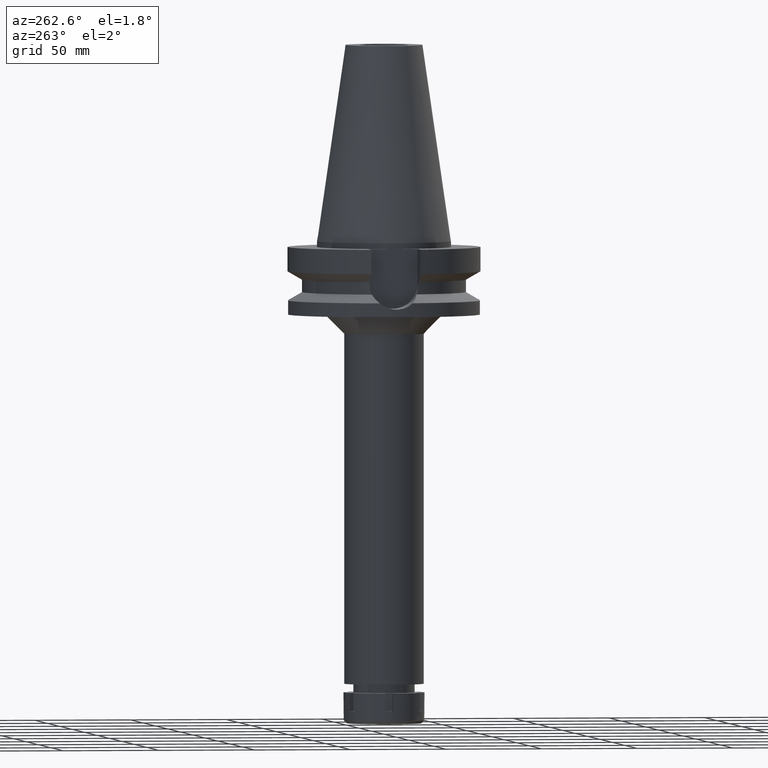
[diagram: clean part render]
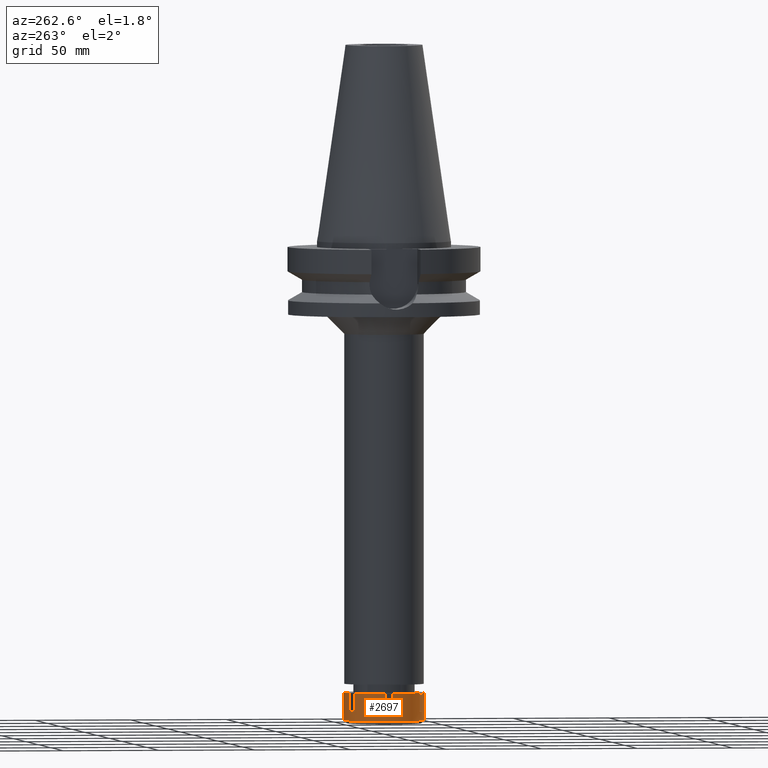
[diagram: same view with one face highlighted and labeled with its STEP entity id]
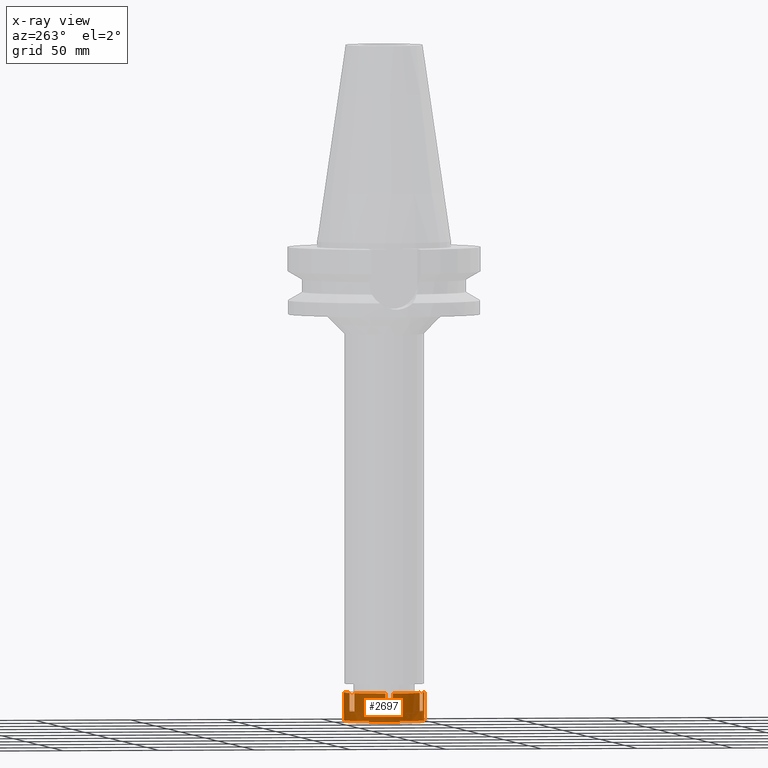
[diagram: x-ray of the same camera — body ghosted, the highlighted face saturated]
A machine part, auxiliary view. The second image highlights one B-rep face of the part: STEP entity #2697.
The next image is the same camera in x-ray: the body ghosted, the highlighted face saturated — about 0% of this face is hidden behind the body in this view.
In plain terms, the highlighted cylindrical surface (partial cylindrical patch) has radius 21 mm, axis along (0, 0, -1).
Its self-contained STEP definition (entity closure, byte-faithful):
#30 = DIRECTION ( 'NONE',  ( 0.0000000000000000000, 0.0000000000000000000, -1.000000000000000000 ) ) ;
#54 = DIRECTION ( 'NONE',  ( 0.0000000000000000000, 0.0000000000000000000, -1.000000000000000000 ) ) ;
#126 = DIRECTION ( 'NONE',  ( -0.4152486510768949035, -0.9097079519157886818, 0.0000000000000000000 ) ) ;
#129 = ORIENTED_EDGE ( 'NONE', *, *, #871, .T. ) ;
#140 = CARTESIAN_POINT ( 'NONE',  ( -20.90454496036999998, -2.000000000000000000, -9.500000000000000000 ) ) ;
#144 = DIRECTION ( 'NONE',  ( 0.0000000000000000000, 0.0000000000000000000, -1.000000000000000000 ) ) ;
#153 = FACE_OUTER_BOUND ( 'NONE', #1088, .T. ) ;
#171 = VERTEX_POINT ( 'NONE', #1760 ) ;
#235 = CARTESIAN_POINT ( 'NONE',  ( -8.720221672615000585, 19.10386699022999935, -9.500000000000000000 ) ) ;
#265 = ORIENTED_EDGE ( 'NONE', *, *, #1177, .F. ) ;
#274 = EDGE_CURVE ( 'NONE', #1949, #2956, #315, .T. ) ;
#281 = CIRCLE ( 'NONE', #3175, 20.99999999999999645 ) ;
#301 = CARTESIAN_POINT ( 'NONE',  ( 0.0000000000000000000, 0.0000000000000000000, -14.50000000000000000 ) ) ;
#315 = LINE ( 'NONE', #2047, #2255 ) ;
#316 = EDGE_CURVE ( 'NONE', #171, #548, #804, .T. ) ;
#345 = DIRECTION ( 'NONE',  ( 0.0000000000000000000, 0.0000000000000000000, 1.000000000000000000 ) ) ;
#370 = DIRECTION ( 'NONE',  ( 0.0000000000000000000, 0.0000000000000000000, -1.000000000000000000 ) ) ;
#447 = ORIENTED_EDGE ( 'NONE', *, *, #1408, .T. ) ;
#454 = CARTESIAN_POINT ( 'NONE',  ( -8.720221672615000585, -19.10386699022999935, -9.500000000000000000 ) ) ;
#496 = EDGE_CURVE ( 'NONE', #811, #1340, #1319, .T. ) ;
#507 = VERTEX_POINT ( 'NONE', #1262 ) ;
#509 = CIRCLE ( 'NONE', #2712, 21.00000000000000711 ) ;
#548 = VERTEX_POINT ( 'NONE', #1485 ) ;
#562 = CARTESIAN_POINT ( 'NONE',  ( -12.18432328774999895, -17.10386699022999935, 0.0000000000000000000 ) ) ;
#596 = DIRECTION ( 'NONE',  ( -0.5802058708454290725, -0.8144698566776411575, 0.0000000000000000000 ) ) ;
#627 = CARTESIAN_POINT ( 'NONE',  ( -12.18432328774999895, 17.10386699022999935, -9.500000000000000000 ) ) ;
#657 = DIRECTION ( 'NONE',  ( -0.9954545219222313834, 0.09523809523810303213, 0.0000000000000000000 ) ) ;
#738 = ORIENTED_EDGE ( 'NONE', *, *, #2731, .F. ) ;
#804 = CIRCLE ( 'NONE', #1743, 21.00000000000000711 ) ;
#811 = VERTEX_POINT ( 'NONE', #140 ) ;
#817 = DIRECTION ( 'NONE',  ( 0.0000000000000000000, 0.0000000000000000000, -1.000000000000000000 ) ) ;
#839 = EDGE_CURVE ( 'NONE', #2295, #2210, #2596, .T. ) ;
#871 = EDGE_CURVE ( 'NONE', #3151, #2523, #2810, .T. ) ;
#877 = VECTOR ( 'NONE', #3126, 1000.000000000000000 ) ;
#905 = CIRCLE ( 'NONE', #1377, 21.00000000000000000 ) ;
#930 = CARTESIAN_POINT ( 'NONE',  ( 0.0000000000000000000, 0.0000000000000000000, 0.0000000000000000000 ) ) ;
#942 = EDGE_CURVE ( 'NONE', #1949, #507, #905, .T. ) ;
#1014 = DIRECTION ( 'NONE',  ( 0.0000000000000000000, 0.0000000000000000000, 1.000000000000000000 ) ) ;
#1032 = EDGE_CURVE ( 'NONE', #811, #3586, #3090, .T. ) ;
#1049 = CARTESIAN_POINT ( 'NONE',  ( 0.0000000000000000000, 0.0000000000000000000, 0.0000000000000000000 ) ) ;
#1088 = EDGE_LOOP ( 'NONE', ( #2754, #3512, #1118, #447, #2624, #1384, #738, #1616, #265, #1654, #1395, #2320, #1833, #129, #2458, #1216 ) ) ;
#1118 = ORIENTED_EDGE ( 'NONE', *, *, #3022, .T. ) ;
#1133 = CARTESIAN_POINT ( 'NONE',  ( -20.90454496036999998, 2.000000000000000000, -9.500000000000000000 ) ) ;
#1152 = LINE ( 'NONE', #2829, #3107 ) ;
#1177 = EDGE_CURVE ( 'NONE', #1774, #548, #1301, .T. ) ;
#1216 = ORIENTED_EDGE ( 'NONE', *, *, #3372, .T. ) ;
#1262 = CARTESIAN_POINT ( 'NONE',  ( -8.720221672615998898, -19.10386699022999935, 0.0000000000000000000 ) ) ;
#1276 = EDGE_CURVE ( 'NONE', #2295, #3304, #509, .T. ) ;
#1301 = LINE ( 'NONE', #2680, #877 ) ;
#1319 = CIRCLE ( 'NONE', #3223, 20.99999999999999289 ) ;
#1340 = VERTEX_POINT ( 'NONE', #1133 ) ;
#1377 = AXIS2_PLACEMENT_3D ( 'NONE', #2922, #2888, #1540 ) ;
#1384 = ORIENTED_EDGE ( 'NONE', *, *, #942, .T. ) ;
#1395 = ORIENTED_EDGE ( 'NONE', *, *, #1032, .F. ) ;
#1408 = EDGE_CURVE ( 'NONE', #2859, #2956, #2246, .T. ) ;
#1420 = DIRECTION ( 'NONE',  ( -0.5802058708453158298, 0.8144698566777217597, 0.0000000000000000000 ) ) ;
#1470 = DIRECTION ( 'NONE',  ( 0.0000000000000000000, 1.000000000000000000, 0.0000000000000000000 ) ) ;
#1485 = CARTESIAN_POINT ( 'NONE',  ( -12.18432328774999895, -17.10386699022999935, -9.500000000000000000 ) ) ;
#1497 = VECTOR ( 'NONE', #1515, 1000.000000000000000 ) ;
#1505 = VECTOR ( 'NONE', #1014, 1000.000000000000000 ) ;
#1506 = LINE ( 'NONE', #1761, #1754 ) ;
#1515 = DIRECTION ( 'NONE',  ( 0.0000000000000000000, 0.0000000000000000000, -1.000000000000000000 ) ) ;
#1540 = DIRECTION ( 'NONE',  ( 0.0000000000000000000, -1.000000000000000000, 0.0000000000000000000 ) ) ;
#1556 = AXIS2_PLACEMENT_3D ( 'NONE', #930, #3137, #657 ) ;
#1616 = ORIENTED_EDGE ( 'NONE', *, *, #316, .T. ) ;
#1636 = AXIS2_PLACEMENT_3D ( 'NONE', #2519, #2751, #1420 ) ;
#1654 = ORIENTED_EDGE ( 'NONE', *, *, #2289, .T. ) ;
#1677 = EDGE_CURVE ( 'NONE', #3559, #2523, #2401, .T. ) ;
#1679 = CARTESIAN_POINT ( 'NONE',  ( 0.0000000000000000000, 0.0000000000000000000, 0.0000000000000000000 ) ) ;
#1730 = CARTESIAN_POINT ( 'NONE',  ( -20.90454496036999998, -2.000000000000000000, -9.500000000000000000 ) ) ;
#1743 = AXIS2_PLACEMENT_3D ( 'NONE', #2239, #144, #126 ) ;
#1754 = VECTOR ( 'NONE', #54, 1000.000000000000000 ) ;
#1760 = CARTESIAN_POINT ( 'NONE',  ( -8.720221672615998898, -19.10386699022999935, -9.500000000000000000 ) ) ;
#1761 = CARTESIAN_POINT ( 'NONE',  ( 0.0000000000000000000, 21.00000000000000000, 0.0000000000000000000 ) ) ;
#1774 = VERTEX_POINT ( 'NONE', #562 ) ;
#1790 = EDGE_CURVE ( 'NONE', #3151, #1340, #1152, .T. ) ;
#1833 = ORIENTED_EDGE ( 'NONE', *, *, #1790, .F. ) ;
#1846 = CARTESIAN_POINT ( 'NONE',  ( 0.0000000000000000000, 21.00000000000000000, 0.0000000000000000000 ) ) ;
#1864 = CARTESIAN_POINT ( 'NONE',  ( -20.90454496036999998, 2.000000000000000000, 0.0000000000000000000 ) ) ;
#1871 = CARTESIAN_POINT ( 'NONE',  ( 0.0000000000000000000, 0.0000000000000000000, 0.0000000000000000000 ) ) ;
#1884 = DIRECTION ( 'NONE',  ( -0.4152486510768949035, 0.9097079519157886818, 0.0000000000000000000 ) ) ;
#1949 = VERTEX_POINT ( 'NONE', #2061 ) ;
#2047 = CARTESIAN_POINT ( 'NONE',  ( 0.0000000000000000000, -21.00000000000000000, 0.0000000000000000000 ) ) ;
#2061 = CARTESIAN_POINT ( 'NONE',  ( 0.0000000000000000000, -21.00000000000000000, 0.0000000000000000000 ) ) ;
#2071 = CARTESIAN_POINT ( 'NONE',  ( -12.18432328774999895, 17.10386699022999935, 0.0000000000000000000 ) ) ;
#2191 = AXIS2_PLACEMENT_3D ( 'NONE', #1871, #2720, #2685 ) ;
#2210 = VERTEX_POINT ( 'NONE', #235 ) ;
#2239 = CARTESIAN_POINT ( 'NONE',  ( 0.0000000000000000000, 0.0000000000000000000, -9.500000000000000000 ) ) ;
#2246 = CIRCLE ( 'NONE', #2817, 21.00000000000000000 ) ;
#2248 = CARTESIAN_POINT ( 'NONE',  ( -8.720221672615000585, 19.10386699022999935, 0.0000000000000000000 ) ) ;
#2255 = VECTOR ( 'NONE', #30, 1000.000000000000000 ) ;
#2289 = EDGE_CURVE ( 'NONE', #1774, #3586, #281, .T. ) ;
#2295 = VERTEX_POINT ( 'NONE', #2248 ) ;
#2300 = VECTOR ( 'NONE', #2436, 1000.000000000000000 ) ;
#2320 = ORIENTED_EDGE ( 'NONE', *, *, #496, .T. ) ;
#2327 = CARTESIAN_POINT ( 'NONE',  ( 0.0000000000000000000, 0.0000000000000000000, -9.500000000000000000 ) ) ;
#2401 = LINE ( 'NONE', #2943, #2300 ) ;
#2409 = DIRECTION ( 'NONE',  ( 0.0000000000000000000, 0.0000000000000000000, -1.000000000000000000 ) ) ;
#2436 = DIRECTION ( 'NONE',  ( 0.0000000000000000000, 0.0000000000000000000, 1.000000000000000000 ) ) ;
#2440 = CIRCLE ( 'NONE', #1636, 21.00000000000000711 ) ;
#2458 = ORIENTED_EDGE ( 'NONE', *, *, #1677, .F. ) ;
#2500 = CARTESIAN_POINT ( 'NONE',  ( 0.0000000000000000000, 21.00000000000000000, -14.50000000000000000 ) ) ;
#2519 = CARTESIAN_POINT ( 'NONE',  ( 0.0000000000000000000, 0.0000000000000000000, -9.500000000000000000 ) ) ;
#2523 = VERTEX_POINT ( 'NONE', #2071 ) ;
#2548 = DIRECTION ( 'NONE',  ( 0.0000000000000000000, 0.0000000000000000000, 1.000000000000000000 ) ) ;
#2587 = CARTESIAN_POINT ( 'NONE',  ( -20.90454496036999998, -2.000000000000000000, 0.0000000000000000000 ) ) ;
#2596 = LINE ( 'NONE', #3409, #1497 ) ;
#2624 = ORIENTED_EDGE ( 'NONE', *, *, #274, .F. ) ;
#2680 = CARTESIAN_POINT ( 'NONE',  ( -12.18432328774999895, -17.10386699022999935, 0.0000000000000000000 ) ) ;
#2685 = DIRECTION ( 'NONE',  ( 0.0000000000000000000, -1.000000000000000000, 0.0000000000000000000 ) ) ;
#2697 = ADVANCED_FACE ( 'NONE', ( #153 ), #3495, .T. ) ;
#2712 = AXIS2_PLACEMENT_3D ( 'NONE', #1049, #2409, #1884 ) ;
#2720 = DIRECTION ( 'NONE',  ( 0.0000000000000000000, 0.0000000000000000000, -1.000000000000000000 ) ) ;
#2731 = EDGE_CURVE ( 'NONE', #171, #507, #3544, .T. ) ;
#2749 = CARTESIAN_POINT ( 'NONE',  ( 0.0000000000000000000, -21.00000000000000000, -14.50000000000000000 ) ) ;
#2751 = DIRECTION ( 'NONE',  ( 0.0000000000000000000, 0.0000000000000000000, -1.000000000000000000 ) ) ;
#2754 = ORIENTED_EDGE ( 'NONE', *, *, #839, .F. ) ;
#2810 = CIRCLE ( 'NONE', #1556, 20.99999999999999289 ) ;
#2817 = AXIS2_PLACEMENT_3D ( 'NONE', #301, #2548, #1470 ) ;
#2829 = CARTESIAN_POINT ( 'NONE',  ( -20.90454496036999998, 2.000000000000000000, 0.0000000000000000000 ) ) ;
#2831 = DIRECTION ( 'NONE',  ( -0.9954545219222313834, -0.09523809523810303213, 0.0000000000000000000 ) ) ;
#2859 = VERTEX_POINT ( 'NONE', #2500 ) ;
#2888 = DIRECTION ( 'NONE',  ( 0.0000000000000000000, 0.0000000000000000000, -1.000000000000000000 ) ) ;
#2922 = CARTESIAN_POINT ( 'NONE',  ( 0.0000000000000000000, 0.0000000000000000000, 0.0000000000000000000 ) ) ;
#2943 = CARTESIAN_POINT ( 'NONE',  ( -12.18432328774999895, 17.10386699022999935, -9.500000000000000000 ) ) ;
#2956 = VERTEX_POINT ( 'NONE', #2749 ) ;
#3022 = EDGE_CURVE ( 'NONE', #3304, #2859, #1506, .T. ) ;
#3056 = DIRECTION ( 'NONE',  ( 0.0000000000000000000, 0.0000000000000000000, -1.000000000000000000 ) ) ;
#3090 = LINE ( 'NONE', #1730, #3227 ) ;
#3107 = VECTOR ( 'NONE', #817, 1000.000000000000000 ) ;
#3126 = DIRECTION ( 'NONE',  ( 0.0000000000000000000, 0.0000000000000000000, -1.000000000000000000 ) ) ;
#3137 = DIRECTION ( 'NONE',  ( 0.0000000000000000000, 0.0000000000000000000, -1.000000000000000000 ) ) ;
#3151 = VERTEX_POINT ( 'NONE', #1864 ) ;
#3175 = AXIS2_PLACEMENT_3D ( 'NONE', #1679, #3056, #596 ) ;
#3223 = AXIS2_PLACEMENT_3D ( 'NONE', #2327, #370, #2831 ) ;
#3227 = VECTOR ( 'NONE', #345, 1000.000000000000000 ) ;
#3304 = VERTEX_POINT ( 'NONE', #1846 ) ;
#3372 = EDGE_CURVE ( 'NONE', #3559, #2210, #2440, .T. ) ;
#3409 = CARTESIAN_POINT ( 'NONE',  ( -8.720221672615000585, 19.10386699022999935, 0.0000000000000000000 ) ) ;
#3495 = CYLINDRICAL_SURFACE ( 'NONE', #2191, 21.00000000000000000 ) ;
#3512 = ORIENTED_EDGE ( 'NONE', *, *, #1276, .T. ) ;
#3544 = LINE ( 'NONE', #454, #1505 ) ;
#3559 = VERTEX_POINT ( 'NONE', #627 ) ;
#3586 = VERTEX_POINT ( 'NONE', #2587 ) ;